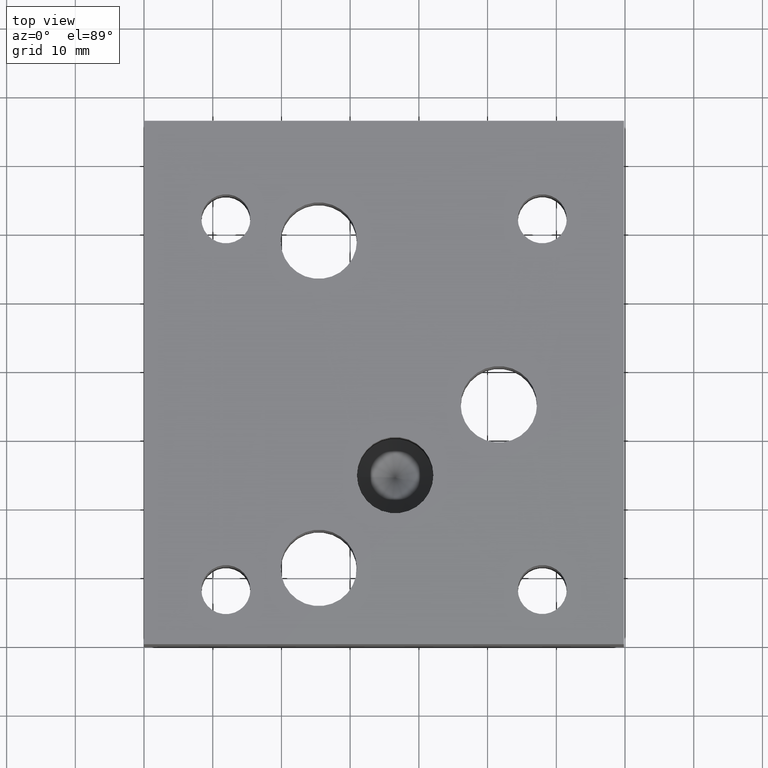
[diagram: clean part render]
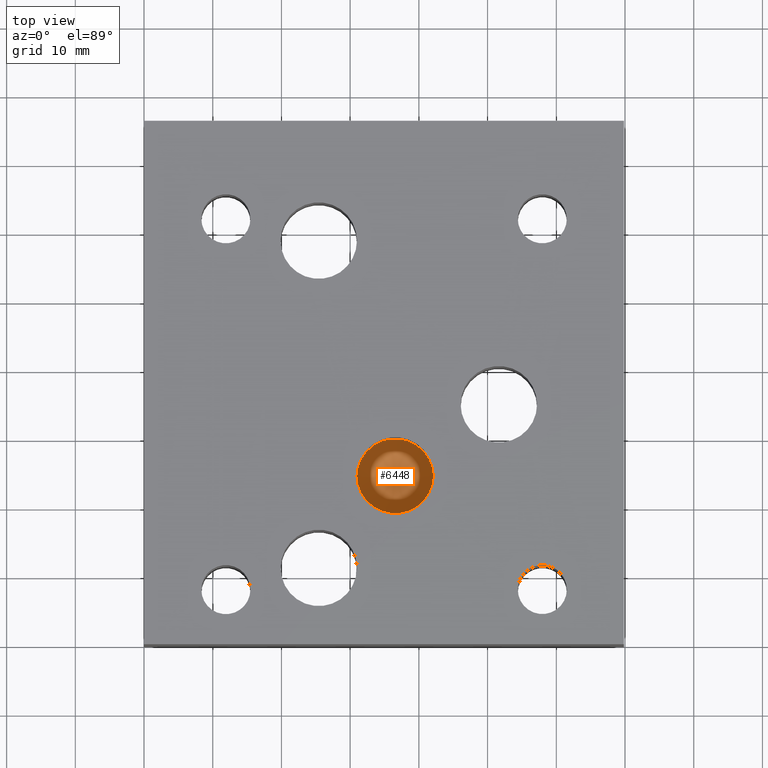
[diagram: same view with one face highlighted and labeled with its STEP entity id]
A machine part, top view. The second image highlights one B-rep face of the part: STEP entity #6448.
In plain terms, the highlighted conical surface has half-angle 60 deg.
Its self-contained STEP definition (entity closure, byte-faithful):
#19=CONICAL_SURFACE('',#6769,2.7813,1.0471975511966);
#74=CIRCLE('',#6770,5.5626);
#75=CIRCLE('',#6771,5.5626);
#652=FACE_OUTER_BOUND('',#999,.T.);
#999=EDGE_LOOP('',(#5545,#5546,#5547,#5548));
#1700=LINE('',#10844,#2383);
#2383=VECTOR('',#8057,2.7813);
#2975=VERTEX_POINT('',#10840);
#2976=VERTEX_POINT('',#10841);
#2977=VERTEX_POINT('',#10843);
#3849=EDGE_CURVE('',#2975,#2976,#74,.T.);
#3850=EDGE_CURVE('',#2976,#2977,#1700,.T.);
#3851=EDGE_CURVE('',#2976,#2975,#75,.T.);
#5545=ORIENTED_EDGE('',*,*,#3849,.T.);
#5546=ORIENTED_EDGE('',*,*,#3850,.T.);
#5547=ORIENTED_EDGE('',*,*,#3850,.F.);
#5548=ORIENTED_EDGE('',*,*,#3851,.T.);
#6448=ADVANCED_FACE('',(#652),#19,.F.);
#6769=AXIS2_PLACEMENT_3D('',#10839,#8053,#8054);
#6770=AXIS2_PLACEMENT_3D('',#10842,#8055,#8056);
#6771=AXIS2_PLACEMENT_3D('',#10845,#8058,#8059);
#8053=DIRECTION('center_axis',(0.,0.,1.));
#8054=DIRECTION('ref_axis',(1.,0.,0.));
#8055=DIRECTION('center_axis',(0.,0.,1.));
#8056=DIRECTION('ref_axis',(1.,0.,0.));
#8057=DIRECTION('',(0.866025403784439,1.06057523872491E-16,-0.5));
#8058=DIRECTION('center_axis',(0.,0.,1.));
#8059=DIRECTION('ref_axis',(1.,0.,0.));
#10839=CARTESIAN_POINT('Origin',(36.54298,24.60752,8.04621569630289));
#10840=CARTESIAN_POINT('',(42.10558,24.60752,9.652));
#10841=CARTESIAN_POINT('',(30.98038,24.60752,9.652));
#10842=CARTESIAN_POINT('Origin',(36.54298,24.60752,9.652));
#10843=CARTESIAN_POINT('',(36.54298,24.60752,6.44043139260579));
#10844=CARTESIAN_POINT('',(33.76168,24.60752,8.04621569630289));
#10845=CARTESIAN_POINT('Origin',(36.54298,24.60752,9.652));